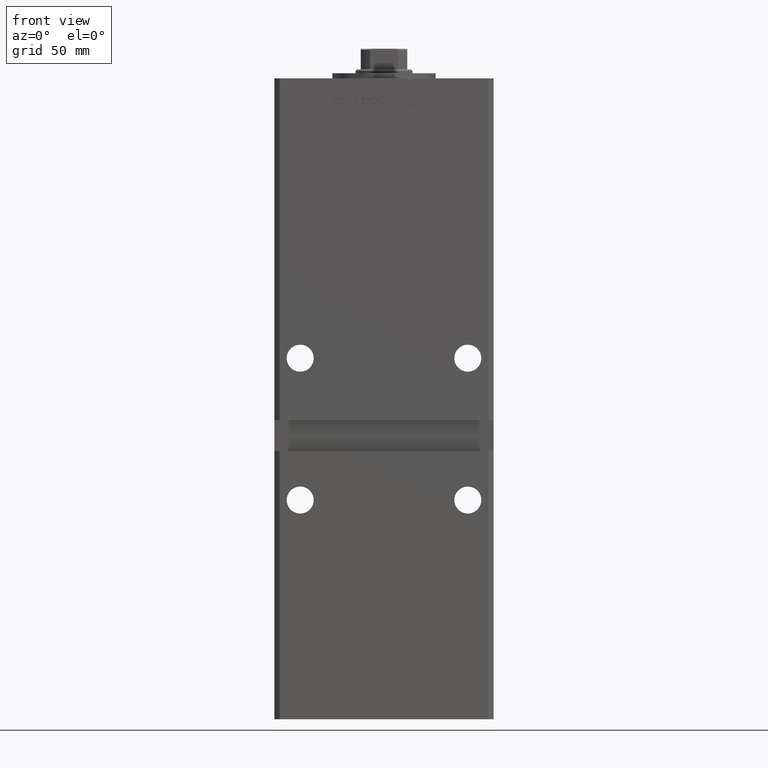
[diagram: clean part render]
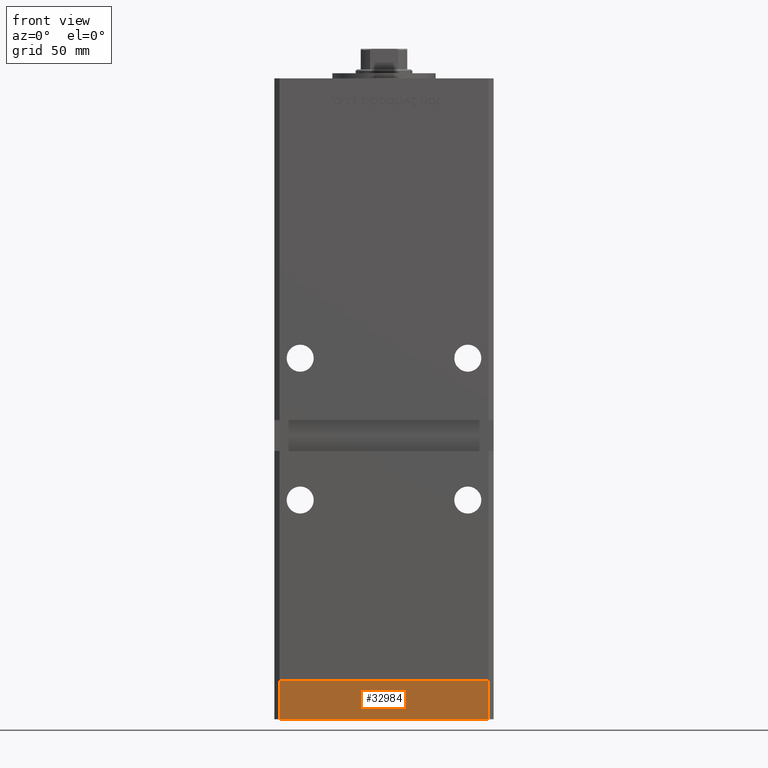
[diagram: same view with one face highlighted and labeled with its STEP entity id]
A machine part, front view. The second image highlights one B-rep face of the part: STEP entity #32984.
In plain terms, the highlighted planar face has unit normal (0, -1, -0).
Its self-contained STEP definition (entity closure, byte-faithful):
#880 = DIRECTION ( 'NONE',  ( 1.000000000000000000, 1.713307136767217096E-16, 0.000000000000000000 ) ) ;
#1824 = VECTOR ( 'NONE', #46510, 1000.000000000000000 ) ;
#2297 = FACE_OUTER_BOUND ( 'NONE', #8392, .T. ) ;
#4641 = EDGE_CURVE ( 'NONE', #12183, #25058, #35535, .T. ) ;
#4790 = ORIENTED_EDGE ( 'NONE', *, *, #42381, .T. ) ;
#5809 = VERTEX_POINT ( 'NONE', #25779 ) ;
#8392 = EDGE_LOOP ( 'NONE', ( #20675, #46199, #34735, #4790 ) ) ;
#12183 = VERTEX_POINT ( 'NONE', #38024 ) ;
#12988 = CARTESIAN_POINT ( 'NONE',  ( -40.49999999999999289, -37.50000000000002132, 0.000000000000000000 ) ) ;
#13724 = EDGE_CURVE ( 'NONE', #12183, #29321, #14107, .T. ) ;
#14107 = LINE ( 'NONE', #22470, #1824 ) ;
#14677 = CARTESIAN_POINT ( 'NONE',  ( -40.49999999999999289, -37.50000000000002132, -15.00000000000000000 ) ) ;
#18074 = LINE ( 'NONE', #38097, #26889 ) ;
#20675 = ORIENTED_EDGE ( 'NONE', *, *, #45341, .F. ) ;
#22113 = AXIS2_PLACEMENT_3D ( 'NONE', #14677, #26308, #47612 ) ;
#22470 = CARTESIAN_POINT ( 'NONE',  ( -40.49999999999999289, -37.50000000000002132, -15.00000000000000000 ) ) ;
#24345 = CARTESIAN_POINT ( 'NONE',  ( 40.50000000000000000, -37.50000000000000711, -15.00000000000000000 ) ) ;
#25058 = VERTEX_POINT ( 'NONE', #24345 ) ;
#25779 = CARTESIAN_POINT ( 'NONE',  ( 40.50000000000000000, -37.50000000000000711, 0.000000000000000000 ) ) ;
#26308 = DIRECTION ( 'NONE',  ( 1.713307136767217096E-16, -1.000000000000000000, 0.000000000000000000 ) ) ;
#26883 = DIRECTION ( 'NONE',  ( 1.000000000000000000, 1.713307136767217096E-16, 0.000000000000000000 ) ) ;
#26889 = VECTOR ( 'NONE', #51540, 1000.000000000000000 ) ;
#27153 = CARTESIAN_POINT ( 'NONE',  ( -40.49999999999999289, -37.50000000000002132, -15.00000000000000000 ) ) ;
#29321 = VERTEX_POINT ( 'NONE', #34889 ) ;
#29466 = LINE ( 'NONE', #12988, #46797 ) ;
#32984 = ADVANCED_FACE ( 'NONE', ( #2297 ), #34965, .T. ) ;
#34735 = ORIENTED_EDGE ( 'NONE', *, *, #4641, .T. ) ;
#34889 = CARTESIAN_POINT ( 'NONE',  ( -40.49999999999999289, -37.50000000000002132, 0.000000000000000000 ) ) ;
#34965 = PLANE ( 'NONE',  #22113 ) ;
#35535 = LINE ( 'NONE', #27153, #49754 ) ;
#38024 = CARTESIAN_POINT ( 'NONE',  ( -40.49999999999999289, -37.50000000000002132, -15.00000000000000000 ) ) ;
#38097 = CARTESIAN_POINT ( 'NONE',  ( 40.50000000000000000, -37.50000000000000711, -15.00000000000000000 ) ) ;
#42381 = EDGE_CURVE ( 'NONE', #25058, #5809, #18074, .T. ) ;
#45341 = EDGE_CURVE ( 'NONE', #29321, #5809, #29466, .T. ) ;
#46199 = ORIENTED_EDGE ( 'NONE', *, *, #13724, .F. ) ;
#46510 = DIRECTION ( 'NONE',  ( 0.000000000000000000, 0.000000000000000000, 1.000000000000000000 ) ) ;
#46797 = VECTOR ( 'NONE', #880, 1000.000000000000000 ) ;
#47612 = DIRECTION ( 'NONE',  ( 1.000000000000000000, 1.713307136767217096E-16, 0.000000000000000000 ) ) ;
#49754 = VECTOR ( 'NONE', #26883, 1000.000000000000000 ) ;
#51540 = DIRECTION ( 'NONE',  ( 0.000000000000000000, 0.000000000000000000, 1.000000000000000000 ) ) ;